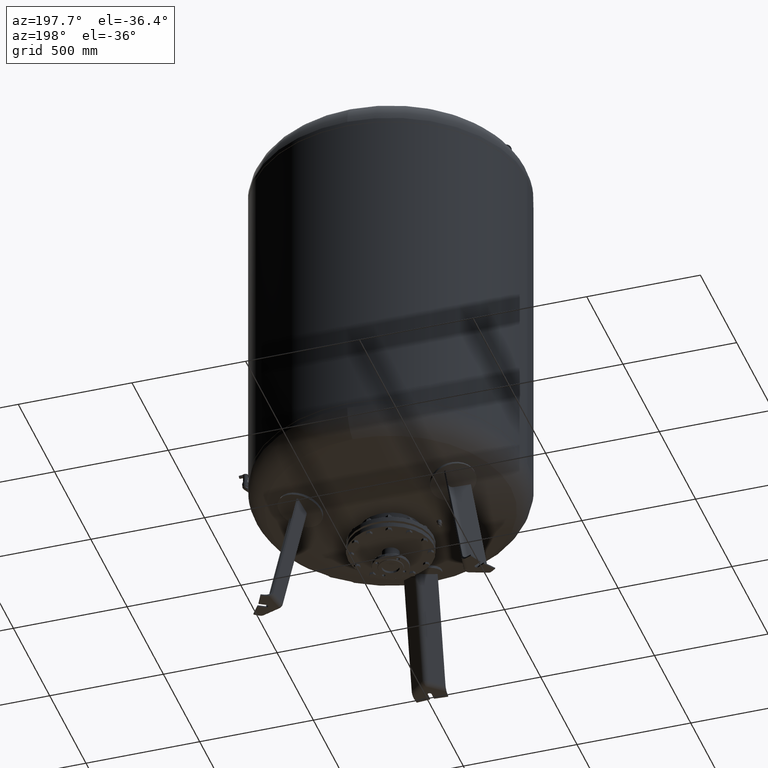
[diagram: clean part render]
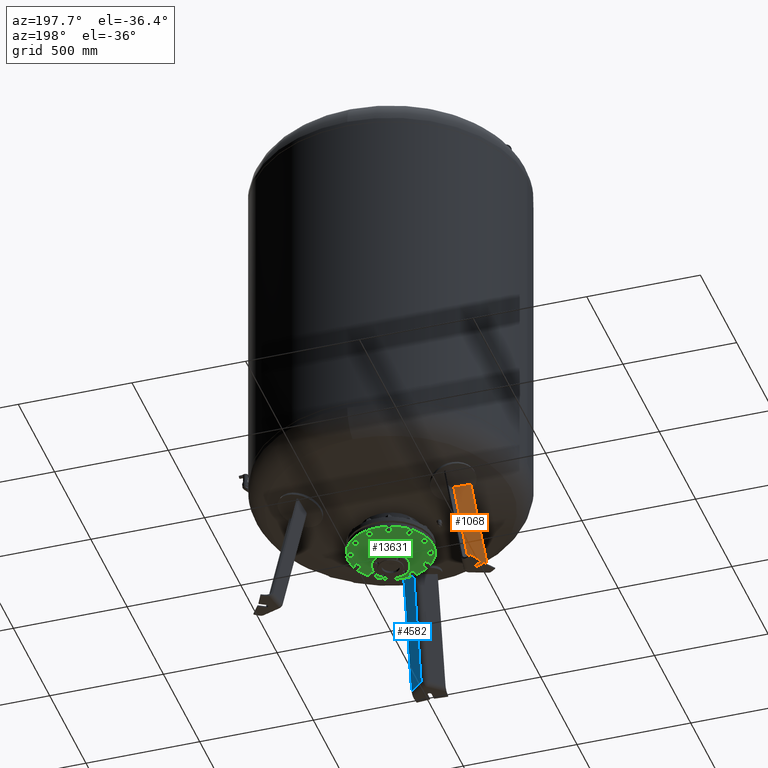
[diagram: same view with three faces highlighted in distinct colors, each labeled with its STEP entity id]
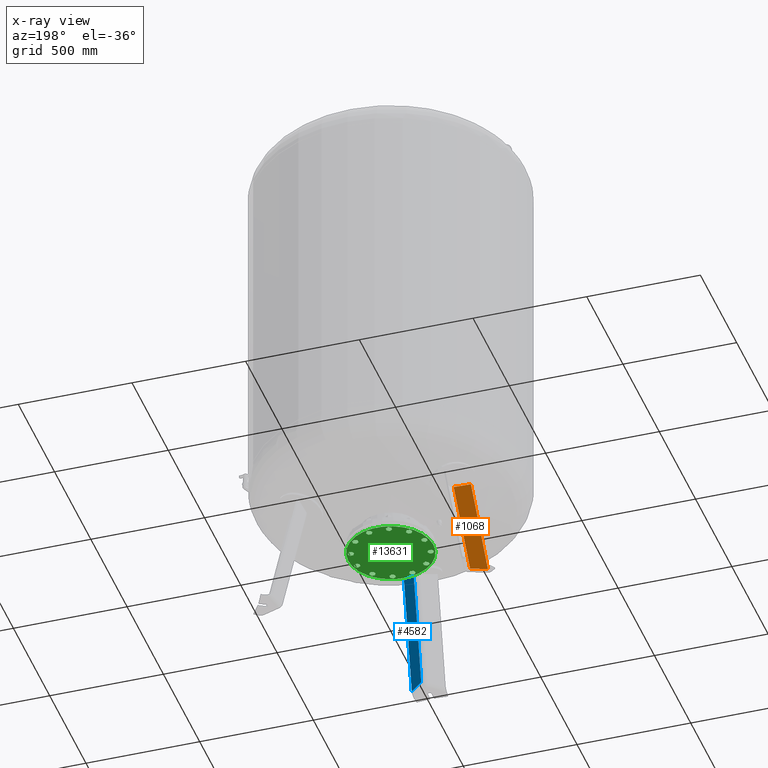
[diagram: x-ray of the same camera — body ghosted, the three highlighted faces saturated]
A machine part, auxiliary view with three faces highlighted in distinct colors.
The next image is the same camera in x-ray (body ghosted, the three faces saturated) — at least one of them is partly hidden behind the body in this view.
Their STEP definitions:

[orange] entity #1068 — the highlighted planar face has unit normal (-0.3243, 0.9325, 0.1588).
#512=CARTESIAN_POINT('',(-420.404321888330290,224.087779953756920,27.029948423057284));
#513=VERTEX_POINT('',#512);
#522=CARTESIAN_POINT('',(-491.178961512120280,199.476382368576220,27.029948423057281));
#523=VERTEX_POINT('',#522);
#531=CARTESIAN_POINT('',(-491.178961512120280,199.476382368576220,27.029948423057281));
#532=DIRECTION('',(0.944521094592692,0.328450760190052,4.741265E-017));
#533=VECTOR('',#532,74.931772333057651);
#534=LINE('',#531,#533);
#535=EDGE_CURVE('',#523,#513,#534,.T.);
#851=CARTESIAN_POINT('',(-331.808702377670270,172.937075180255650,508.320240019970470));
#852=VERTEX_POINT('',#851);
#882=CARTESIAN_POINT('',(-399.179928245355650,146.360715746824270,526.809077370483350));
#883=VERTEX_POINT('',#882);
#884=CARTESIAN_POINT('',(-77.536866522000253,96.546967477290963,1476.144501634031000));
#885=DIRECTION('',(0.324282864533177,-0.932535537409927,-0.158802063077709));
#886=DIRECTION('',(0.180056805991956,-0.103955845408880,0.978147600733805));
#887=AXIS2_PLACEMENT_3D('',#884,#885,#886);
#888=CIRCLE('',#887,1003.580298946269700);
#889=EDGE_CURVE('',#883,#852,#888,.T.);
#1043=CARTESIAN_POINT('',(-420.404321888330290,224.087779953756920,27.029948423057284));
#1044=DIRECTION('',(0.180056805991956,-0.103955845408880,0.978147600733806));
#1045=VECTOR('',#1044,492.042603013951630);
#1046=LINE('',#1043,#1045);
#1047=EDGE_CURVE('',#513,#852,#1046,.T.);
#1052=CARTESIAN_POINT('',(-500.117346623909440,204.636961418988250,-21.527282742766886));
#1053=DIRECTION('',(-0.324282864533177,0.932535537409927,0.158802063077709));
#1054=DIRECTION('',(0.180056805991956,-0.103955845408880,0.978147600733806));
#1055=AXIS2_PLACEMENT_3D('',#1052,#1053,#1054);
#1056=PLANE('',#1055);
#1057=ORIENTED_EDGE('',*,*,#889,.T.);
#1058=ORIENTED_EDGE('',*,*,#1047,.F.);
#1059=ORIENTED_EDGE('',*,*,#535,.F.);
#1060=CARTESIAN_POINT('',(-491.178961512120280,199.476382368576220,27.029948423057281));
#1061=DIRECTION('',(0.180056805991956,-0.103955845408880,0.978147600733806));
#1062=VECTOR('',#1061,510.944491989237750);
#1063=LINE('',#1060,#1062);
#1064=EDGE_CURVE('',#523,#883,#1063,.T.);
#1065=ORIENTED_EDGE('',*,*,#1064,.T.);
#1066=EDGE_LOOP('',(#1057,#1058,#1059,#1065));
#1067=FACE_OUTER_BOUND('',#1066,.T.);
#1068=ADVANCED_FACE('',(#1067),#1056,.T.);

[blue] entity #4582 — the highlighted planar face has unit normal (0.6455, 0.7471, -0.1588).
#3797=CARTESIAN_POINT('',(16.136450826554551,-469.470961811045530,21.029948423057281));
#3798=VERTEX_POINT('',#3797);
#3839=CARTESIAN_POINT('',(73.500000000000014,-519.029946471096990,21.029948423057284));
#3840=VERTEX_POINT('',#3839);
#3841=CARTESIAN_POINT('',(16.136450826554551,-469.470961811045530,21.029948423057281));
#3842=DIRECTION('',(0.756707249513243,-0.653753882232529,4.686537E-017));
#3843=VECTOR('',#3842,75.806792138366546);
#3844=LINE('',#3841,#3843);
#3845=EDGE_CURVE('',#3798,#3840,#3844,.T.);
#4331=CARTESIAN_POINT('',(16.136450826554654,-366.399566169852280,505.942739782580020));
#4332=VERTEX_POINT('',#4331);
#4333=CARTESIAN_POINT('',(73.500000000000114,-412.056023191574810,524.302688812935000));
#4334=VERTEX_POINT('',#4333);
#4335=CARTESIAN_POINT('',(-41.020088505273414,-110.996632672373320,1475.203780025492300));
#4336=DIRECTION('',(-0.645458033062182,-0.747104967402682,0.158802063077709));
#4337=DIRECTION('',(-5.092368E-017,-0.207911690817760,-0.978147600733805));
#4338=AXIS2_PLACEMENT_3D('',#4335,#4336,#4337);
#4339=CIRCLE('',#4338,1003.974348556914600);
#4340=EDGE_CURVE('',#4332,#4334,#4339,.T.);
#4554=CARTESIAN_POINT('',(16.136450826554654,-366.399566169852280,505.942739782580020));
#4555=DIRECTION('',(-2.078256E-016,-0.207911690817760,-0.978147600733806));
#4556=VECTOR('',#4555,495.746031576156330);
#4557=LINE('',#4554,#4556);
#4558=EDGE_CURVE('',#4332,#3798,#4557,.T.);
#4566=CARTESIAN_POINT('',(1.724896E-014,-464.575765201900940,-21.527282742766886));
#4567=DIRECTION('',(0.645458033062182,0.747104967402682,-0.158802063077709));
#4568=DIRECTION('',(-1.655020E-016,-0.207911690817760,-0.978147600733806));
#4569=AXIS2_PLACEMENT_3D('',#4566,#4567,#4568);
#4570=PLANE('',#4569);
#4571=ORIENTED_EDGE('',*,*,#4340,.T.);
#4572=CARTESIAN_POINT('',(73.500000000000014,-519.029946471096990,21.029948423057284));
#4573=DIRECTION('',(1.933389E-016,0.207911690817760,0.978147600733806));
#4574=VECTOR('',#4573,514.516152789541020);
#4575=LINE('',#4572,#4574);
#4576=EDGE_CURVE('',#3840,#4334,#4575,.T.);
#4577=ORIENTED_EDGE('',*,*,#4576,.F.);
#4578=ORIENTED_EDGE('',*,*,#3845,.F.);
#4579=ORIENTED_EDGE('',*,*,#4558,.F.);
#4580=EDGE_LOOP('',(#4571,#4577,#4578,#4579));
#4581=FACE_OUTER_BOUND('',#4580,.T.);
#4582=ADVANCED_FACE('',(#4581),#4570,.T.);

[green] entity #13631 — the highlighted planar face has unit normal (0, 0, -1).
#5775=CARTESIAN_POINT('',(-38.050000000000018,-4.163799E-015,362.0));
#5776=VERTEX_POINT('',#5775);
#5792=CARTESIAN_POINT('',(38.049999999999983,-8.823426E-015,362.0));
#5793=VERTEX_POINT('',#5792);
#5800=CARTESIAN_POINT('',(-8.604691E-015,-4.163799E-015,362.0));
#5801=DIRECTION('',(0.0,0.0,-1.0));
#5802=DIRECTION('',(-1.0,0.0,0.0));
#5803=AXIS2_PLACEMENT_3D('',#5800,#5801,#5802);
#5804=CIRCLE('',#5803,38.050000000000004);
#5805=EDGE_CURVE('',#5793,#5776,#5804,.T.);
#5815=CARTESIAN_POINT('',(-187.500000000000000,-4.163799E-015,362.000000000000110));
#5816=VERTEX_POINT('',#5815);
#5825=CARTESIAN_POINT('',(187.500000000000000,-2.712517E-014,362.000000000000110));
#5826=VERTEX_POINT('',#5825);
#5827=CARTESIAN_POINT('',(-8.604691E-015,-4.163799E-015,362.000000000000110));
#5828=DIRECTION('',(0.0,0.0,-1.0));
#5829=DIRECTION('',(-1.0,0.0,0.0));
#5830=AXIS2_PLACEMENT_3D('',#5827,#5828,#5829);
#5831=CIRCLE('',#5830,187.500000000000000);
#5832=EDGE_CURVE('',#5826,#5816,#5831,.T.);
#7831=CARTESIAN_POINT('',(43.352190054672320,-175.648982363969960,362.0));
#7832=VERTEX_POINT('',#7831);
#7833=CARTESIAN_POINT('',(55.352190054672313,-168.720779133694460,362.0));
#7834=VERTEX_POINT('',#7833);
#7835=CARTESIAN_POINT('',(43.352190054672320,-175.648982363969960,362.0));
#7836=DIRECTION('',(0.866025403784439,0.500000000000000,0.0));
#7837=VECTOR('',#7836,13.856406460551009);
#7838=LINE('',#7835,#7837);
#7839=EDGE_CURVE('',#7832,#7834,#7838,.T.);
#7871=CARTESIAN_POINT('',(31.352190054672334,-168.720779133694460,362.0));
#7872=VERTEX_POINT('',#7871);
#7873=CARTESIAN_POINT('',(31.352190054672334,-168.720779133694460,362.0));
#7874=DIRECTION('',(0.866025403784439,-0.500000000000000,0.0));
#7875=VECTOR('',#7874,13.856406460551002);
#7876=LINE('',#7873,#7875);
#7877=EDGE_CURVE('',#7872,#7832,#7876,.T.);
#7902=CARTESIAN_POINT('',(31.352190054672349,-154.864372673143440,362.0));
#7903=VERTEX_POINT('',#7902);
#7904=CARTESIAN_POINT('',(31.352190054672349,-154.864372673143440,362.0));
#7905=DIRECTION('',(0.0,-1.0,0.0));
#7906=VECTOR('',#7905,13.856406460551028);
#7907=LINE('',#7904,#7906);
#7908=EDGE_CURVE('',#7903,#7872,#7907,.T.);
#7933=CARTESIAN_POINT('',(43.352190054672320,-147.936169442867940,362.0));
#7934=VERTEX_POINT('',#7933);
#7935=CARTESIAN_POINT('',(43.352190054672320,-147.936169442867940,362.0));
#7936=DIRECTION('',(-0.866025403784438,-0.500000000000000,0.0));
#7937=VECTOR('',#7936,13.856406460550989);
#7938=LINE('',#7935,#7937);
#7939=EDGE_CURVE('',#7934,#7903,#7938,.T.);
#7964=CARTESIAN_POINT('',(55.352190054672313,-154.864372673143440,362.0));
#7965=VERTEX_POINT('',#7964);
#7966=CARTESIAN_POINT('',(55.352190054672313,-168.720779133694460,362.0));
#7967=DIRECTION('',(0.0,1.0,0.0));
#7968=VECTOR('',#7967,13.856406460551028);
#7969=LINE('',#7966,#7968);
#7970=EDGE_CURVE('',#7834,#7965,#7969,.T.);
#7995=CARTESIAN_POINT('',(55.352190054672313,-154.864372673143440,362.0));
#7996=DIRECTION('',(-0.866025403784439,0.500000000000000,0.0));
#7997=VECTOR('',#7996,13.856406460551009);
#7998=LINE('',#7995,#7997);
#7999=EDGE_CURVE('',#7965,#7934,#7998,.T.);
#8305=CARTESIAN_POINT('',(125.368589079022360,-130.440385848746640,362.0));
#8306=VERTEX_POINT('',#8305);
#8307=CARTESIAN_POINT('',(132.296792309297840,-118.440385848746640,362.0));
#8308=VERTEX_POINT('',#8307);
#8309=CARTESIAN_POINT('',(125.368589079022360,-130.440385848746640,362.0));
#8310=DIRECTION('',(0.499999999999999,0.866025403784439,0.0));
#8311=VECTOR('',#8310,13.856406460551007);
#8312=LINE('',#8309,#8311);
#8313=EDGE_CURVE('',#8306,#8308,#8312,.T.);
#8345=CARTESIAN_POINT('',(111.512182618471340,-130.440385848746640,362.0));
#8346=VERTEX_POINT('',#8345);
#8347=CARTESIAN_POINT('',(111.512182618471340,-130.440385848746640,362.0));
#8348=DIRECTION('',(1.0,0.0,0.0));
#8349=VECTOR('',#8348,13.856406460551014);
#8350=LINE('',#8347,#8349);
#8351=EDGE_CURVE('',#8346,#8306,#8350,.T.);
#8376=CARTESIAN_POINT('',(104.583979388195840,-118.440385848746660,362.0));
#8377=VERTEX_POINT('',#8376);
#8378=CARTESIAN_POINT('',(104.583979388195840,-118.440385848746660,362.0));
#8379=DIRECTION('',(0.500000000000000,-0.866025403784439,0.0));
#8380=VECTOR('',#8379,13.856406460551002);
#8381=LINE('',#8378,#8380);
#8382=EDGE_CURVE('',#8377,#8346,#8381,.T.);
#8407=CARTESIAN_POINT('',(111.512182618471340,-106.440385848746640,362.0));
#8408=VERTEX_POINT('',#8407);
#8409=CARTESIAN_POINT('',(111.512182618471340,-106.440385848746640,362.0));
#8410=DIRECTION('',(-0.499999999999999,-0.866025403784439,0.0));
#8411=VECTOR('',#8410,13.856406460551026);
#8412=LINE('',#8409,#8411);
#8413=EDGE_CURVE('',#8408,#8377,#8412,.T.);
#8438=CARTESIAN_POINT('',(125.368589079022340,-106.440385848746640,362.0));
#8439=VERTEX_POINT('',#8438);
#8440=CARTESIAN_POINT('',(132.296792309297840,-118.440385848746640,362.0));
#8441=DIRECTION('',(-0.500000000000000,0.866025403784439,0.0));
#8442=VECTOR('',#8441,13.856406460551014);
#8443=LINE('',#8440,#8442);
#8444=EDGE_CURVE('',#8308,#8439,#8443,.T.);
#8469=CARTESIAN_POINT('',(125.368589079022340,-106.440385848746640,362.0));
#8470=DIRECTION('',(-1.0,0.0,0.0));
#8471=VECTOR('',#8470,13.856406460551000);
#8472=LINE('',#8469,#8471);
#8473=EDGE_CURVE('',#8439,#8408,#8472,.T.);
#8779=CARTESIAN_POINT('',(173.792575903418990,-50.280393284947714,362.0));
#8780=VERTEX_POINT('',#8779);
#8781=CARTESIAN_POINT('',(173.792575903418990,-36.423986824396700,362.0));
#8782=VERTEX_POINT('',#8781);
#8783=CARTESIAN_POINT('',(173.792575903418990,-50.280393284947714,362.0));
#8784=DIRECTION('',(0.0,1.0,0.0));
#8785=VECTOR('',#8784,13.856406460551014);
#8786=LINE('',#8783,#8785);
#8787=EDGE_CURVE('',#8780,#8782,#8786,.T.);
#8819=CARTESIAN_POINT('',(161.792575903418990,-57.208596515223185,362.0));
#8820=VERTEX_POINT('',#8819);
#8821=CARTESIAN_POINT('',(161.792575903418990,-57.208596515223185,362.0));
#8822=DIRECTION('',(0.866025403784440,0.499999999999998,0.0));
#8823=VECTOR('',#8822,13.856406460551000);
#8824=LINE('',#8821,#8823);
#8825=EDGE_CURVE('',#8820,#8780,#8824,.T.);
#8850=CARTESIAN_POINT('',(149.792575903418990,-50.280393284947706,362.0));
#8851=VERTEX_POINT('',#8850);
#8852=CARTESIAN_POINT('',(149.792575903418990,-50.280393284947706,362.0));
#8853=DIRECTION('',(0.866025403784440,-0.499999999999998,0.0));
#8854=VECTOR('',#8853,13.856406460551003);
#8855=LINE('',#8852,#8854);
#8856=EDGE_CURVE('',#8851,#8820,#8855,.T.);
#8881=CARTESIAN_POINT('',(149.792575903419020,-36.423986824396692,362.0));
#8882=VERTEX_POINT('',#8881);
#8883=CARTESIAN_POINT('',(149.792575903419020,-36.423986824396692,362.0));
#8884=DIRECTION('',(0.0,-1.0,0.0));
#8885=VECTOR('',#8884,13.856406460551014);
#8886=LINE('',#8883,#8885);
#8887=EDGE_CURVE('',#8882,#8851,#8886,.T.);
#8912=CARTESIAN_POINT('',(161.792575903418990,-29.495783594121182,362.0));
#8913=VERTEX_POINT('',#8912);
#8914=CARTESIAN_POINT('',(173.792575903418990,-36.423986824396700,362.0));
#8915=DIRECTION('',(-0.866025403784438,0.500000000000000,0.0));
#8916=VECTOR('',#8915,13.856406460551023);
#8917=LINE('',#8914,#8916);
#8918=EDGE_CURVE('',#8782,#8913,#8917,.T.);
#8943=CARTESIAN_POINT('',(161.792575903418990,-29.495783594121182,362.0));
#8944=DIRECTION('',(-0.866025403784438,-0.500000000000001,0.0));
#8945=VECTOR('',#8944,13.856406460550994);
#8946=LINE('',#8943,#8945);
#8947=EDGE_CURVE('',#8913,#8882,#8946,.T.);
#9253=CARTESIAN_POINT('',(175.648982363969960,43.352190054672327,362.0));
#9254=VERTEX_POINT('',#9253);
#9255=CARTESIAN_POINT('',(168.720779133694460,55.352190054672320,362.0));
#9256=VERTEX_POINT('',#9255);
#9257=CARTESIAN_POINT('',(175.648982363969960,43.352190054672327,362.0));
#9258=DIRECTION('',(-0.500000000000000,0.866025403784439,0.0));
#9259=VECTOR('',#9258,13.856406460551009);
#9260=LINE('',#9257,#9259);
#9261=EDGE_CURVE('',#9254,#9256,#9260,.T.);
#9293=CARTESIAN_POINT('',(168.720779133694460,31.352190054672338,362.0));
#9294=VERTEX_POINT('',#9293);
#9295=CARTESIAN_POINT('',(168.720779133694460,31.352190054672338,362.0));
#9296=DIRECTION('',(0.500000000000000,0.866025403784439,0.0));
#9297=VECTOR('',#9296,13.856406460551003);
#9298=LINE('',#9295,#9297);
#9299=EDGE_CURVE('',#9294,#9254,#9298,.T.);
#9324=CARTESIAN_POINT('',(154.864372673143440,31.352190054672352,362.0));
#9325=VERTEX_POINT('',#9324);
#9326=CARTESIAN_POINT('',(154.864372673143440,31.352190054672352,362.0));
#9327=DIRECTION('',(1.0,0.0,0.0));
#9328=VECTOR('',#9327,13.856406460551028);
#9329=LINE('',#9326,#9328);
#9330=EDGE_CURVE('',#9325,#9294,#9329,.T.);
#9355=CARTESIAN_POINT('',(147.936169442867940,43.352190054672327,362.0));
#9356=VERTEX_POINT('',#9355);
#9357=CARTESIAN_POINT('',(147.936169442867940,43.352190054672327,362.0));
#9358=DIRECTION('',(0.500000000000000,-0.866025403784439,0.0));
#9359=VECTOR('',#9358,13.856406460550991);
#9360=LINE('',#9357,#9359);
#9361=EDGE_CURVE('',#9356,#9325,#9360,.T.);
#9386=CARTESIAN_POINT('',(154.864372673143440,55.352190054672320,362.0));
#9387=VERTEX_POINT('',#9386);
#9388=CARTESIAN_POINT('',(168.720779133694460,55.352190054672320,362.0));
#9389=DIRECTION('',(-1.0,0.0,0.0));
#9390=VECTOR('',#9389,13.856406460551028);
#9391=LINE('',#9388,#9390);
#9392=EDGE_CURVE('',#9256,#9387,#9391,.T.);
#9417=CARTESIAN_POINT('',(154.864372673143440,55.352190054672320,362.0));
#9418=DIRECTION('',(-0.500000000000000,-0.866025403784439,0.0));
#9419=VECTOR('',#9418,13.856406460551009);
#9420=LINE('',#9417,#9419);
#9421=EDGE_CURVE('',#9387,#9356,#9420,.T.);
#9727=CARTESIAN_POINT('',(130.440385848746670,125.368589079022270,362.0));
#9728=VERTEX_POINT('',#9727);
#9729=CARTESIAN_POINT('',(118.440385848746690,132.296792309297790,362.0));
#9730=VERTEX_POINT('',#9729);
#9731=CARTESIAN_POINT('',(130.440385848746670,125.368589079022270,362.0));
#9732=DIRECTION('',(-0.866025403784438,0.500000000000001,0.0));
#9733=VECTOR('',#9732,13.856406460551009);
#9734=LINE('',#9731,#9733);
#9735=EDGE_CURVE('',#9728,#9730,#9734,.T.);
#9767=CARTESIAN_POINT('',(130.440385848746670,111.512182618471270,362.0));
#9768=VERTEX_POINT('',#9767);
#9769=CARTESIAN_POINT('',(130.440385848746670,111.512182618471270,362.0));
#9770=DIRECTION('',(0.0,1.0,0.0));
#9771=VECTOR('',#9770,13.856406460551000);
#9772=LINE('',#9769,#9771);
#9773=EDGE_CURVE('',#9768,#9728,#9772,.T.);
#9798=CARTESIAN_POINT('',(118.440385848746700,104.583979388195790,362.0));
#9799=VERTEX_POINT('',#9798);
#9800=CARTESIAN_POINT('',(118.440385848746700,104.583979388195790,362.0));
#9801=DIRECTION('',(0.866025403784439,0.500000000000000,0.0));
#9802=VECTOR('',#9801,13.856406460550982);
#9803=LINE('',#9800,#9802);
#9804=EDGE_CURVE('',#9799,#9768,#9803,.T.);
#9829=CARTESIAN_POINT('',(106.440385848746700,111.512182618471290,362.0));
#9830=VERTEX_POINT('',#9829);
#9831=CARTESIAN_POINT('',(106.440385848746700,111.512182618471290,362.0));
#9832=DIRECTION('',(0.866025403784439,-0.500000000000000,0.0));
#9833=VECTOR('',#9832,13.856406460551014);
#9834=LINE('',#9831,#9833);
#9835=EDGE_CURVE('',#9830,#9799,#9834,.T.);
#9860=CARTESIAN_POINT('',(106.440385848746700,125.368589079022270,362.0));
#9861=VERTEX_POINT('',#9860);
#9862=CARTESIAN_POINT('',(118.440385848746690,132.296792309297790,362.0));
#9863=DIRECTION('',(-0.866025403784438,-0.500000000000001,0.0));
#9864=VECTOR('',#9863,13.856406460551009);
#9865=LINE('',#9862,#9864);
#9866=EDGE_CURVE('',#9730,#9861,#9865,.T.);
#9891=CARTESIAN_POINT('',(106.440385848746700,125.368589079022270,362.0));
#9892=DIRECTION('',(0.0,-1.0,0.0));
#9893=VECTOR('',#9892,13.856406460550986);
#9894=LINE('',#9891,#9893);
#9895=EDGE_CURVE('',#9861,#9830,#9894,.T.);
#10201=CARTESIAN_POINT('',(50.280393284947706,173.792575903418990,362.0));
#10202=VERTEX_POINT('',#10201);
#10203=CARTESIAN_POINT('',(36.423986824396678,173.792575903418940,362.0));
#10204=VERTEX_POINT('',#10203);
#10205=CARTESIAN_POINT('',(50.280393284947706,173.792575903418990,362.0));
#10206=DIRECTION('',(-1.0,0.0,0.0));
#10207=VECTOR('',#10206,13.856406460551028);
#10208=LINE('',#10205,#10207);
#10209=EDGE_CURVE('',#10202,#10204,#10208,.T.);
#10241=CARTESIAN_POINT('',(57.208596515223178,161.792575903418990,362.0));
#10242=VERTEX_POINT('',#10241);
#10243=CARTESIAN_POINT('',(57.208596515223178,161.792575903418990,362.0));
#10244=DIRECTION('',(-0.499999999999998,0.866025403784440,0.0));
#10245=VECTOR('',#10244,13.856406460551000);
#10246=LINE('',#10243,#10245);
#10247=EDGE_CURVE('',#10242,#10202,#10246,.T.);
#10272=CARTESIAN_POINT('',(50.280393284947692,149.792575903418990,362.0));
#10273=VERTEX_POINT('',#10272);
#10274=CARTESIAN_POINT('',(50.280393284947692,149.792575903418990,362.0));
#10275=DIRECTION('',(0.499999999999999,0.866025403784439,0.0));
#10276=VECTOR('',#10275,13.856406460551007);
#10277=LINE('',#10274,#10276);
#10278=EDGE_CURVE('',#10273,#10242,#10277,.T.);
#10303=CARTESIAN_POINT('',(36.423986824396678,149.792575903418990,362.0));
#10304=VERTEX_POINT('',#10303);
#10305=CARTESIAN_POINT('',(36.423986824396678,149.792575903418990,362.0));
#10306=DIRECTION('',(1.0,0.0,0.0));
#10307=VECTOR('',#10306,13.856406460551014);
#10308=LINE('',#10305,#10307);
#10309=EDGE_CURVE('',#10304,#10273,#10308,.T.);
#10334=CARTESIAN_POINT('',(29.495783594121185,161.792575903418990,362.0));
#10335=VERTEX_POINT('',#10334);
#10336=CARTESIAN_POINT('',(36.423986824396678,173.792575903418940,362.0));
#10337=DIRECTION('',(-0.500000000000001,-0.866025403784438,0.0));
#10338=VECTOR('',#10337,13.856406460550961);
#10339=LINE('',#10336,#10338);
#10340=EDGE_CURVE('',#10204,#10335,#10339,.T.);
#10365=CARTESIAN_POINT('',(29.495783594121185,161.792575903418990,362.0));
#10366=DIRECTION('',(0.499999999999999,-0.866025403784439,0.0));
#10367=VECTOR('',#10366,13.856406460551010);
#10368=LINE('',#10365,#10367);
#10369=EDGE_CURVE('',#10335,#10304,#10368,.T.);
#10675=CARTESIAN_POINT('',(-43.352190054672327,175.648982363969990,362.0));
#10676=VERTEX_POINT('',#10675);
#10677=CARTESIAN_POINT('',(-55.352190054672306,168.720779133694460,362.0));
#10678=VERTEX_POINT('',#10677);
#10679=CARTESIAN_POINT('',(-43.352190054672327,175.648982363969990,362.0));
#10680=DIRECTION('',(-0.866025403784438,-0.500000000000002,0.0));
#10681=VECTOR('',#10680,13.856406460551009);
#10682=LINE('',#10679,#10681);
#10683=EDGE_CURVE('',#10676,#10678,#10682,.T.);
#10715=CARTESIAN_POINT('',(-31.352190054672313,168.720779133694490,362.0));
#10716=VERTEX_POINT('',#10715);
#10717=CARTESIAN_POINT('',(-31.352190054672313,168.720779133694490,362.0));
#10718=DIRECTION('',(-0.866025403784439,0.499999999999999,0.0));
#10719=VECTOR('',#10718,13.856406460551026);
#10720=LINE('',#10717,#10719);
#10721=EDGE_CURVE('',#10716,#10676,#10720,.T.);
#10746=CARTESIAN_POINT('',(-31.352190054672327,154.864372673143460,362.0));
#10747=VERTEX_POINT('',#10746);
#10748=CARTESIAN_POINT('',(-31.352190054672327,154.864372673143460,362.0));
#10749=DIRECTION('',(0.0,1.0,0.0));
#10750=VECTOR('',#10749,13.856406460551028);
#10751=LINE('',#10748,#10750);
#10752=EDGE_CURVE('',#10747,#10716,#10751,.T.);
#10777=CARTESIAN_POINT('',(-43.352190054672334,147.936169442867940,362.0));
#10778=VERTEX_POINT('',#10777);
#10779=CARTESIAN_POINT('',(-43.352190054672334,147.936169442867940,362.0));
#10780=DIRECTION('',(0.866025403784438,0.500000000000001,0.0));
#10781=VECTOR('',#10780,13.856406460551034);
#10782=LINE('',#10779,#10781);
#10783=EDGE_CURVE('',#10778,#10747,#10782,.T.);
#10808=CARTESIAN_POINT('',(-55.352190054672306,154.864372673143460,362.0));
#10809=VERTEX_POINT('',#10808);
#10810=CARTESIAN_POINT('',(-55.352190054672306,168.720779133694460,362.0));
#10811=DIRECTION('',(0.0,-1.0,0.0));
#10812=VECTOR('',#10811,13.856406460551000);
#10813=LINE('',#10810,#10812);
#10814=EDGE_CURVE('',#10678,#10809,#10813,.T.);
#10839=CARTESIAN_POINT('',(-55.352190054672306,154.864372673143460,362.0));
#10840=DIRECTION('',(0.866025403784437,-0.500000000000002,0.0));
#10841=VECTOR('',#10840,13.856406460551003);
#10842=LINE('',#10839,#10841);
#10843=EDGE_CURVE('',#10809,#10778,#10842,.T.);
#11149=CARTESIAN_POINT('',(-125.368589079022270,130.440385848746700,362.0));
#11150=VERTEX_POINT('',#11149);
#11151=CARTESIAN_POINT('',(-132.296792309297790,118.440385848746690,362.0));
#11152=VERTEX_POINT('',#11151);
#11153=CARTESIAN_POINT('',(-125.368589079022270,130.440385848746700,362.0));
#11154=DIRECTION('',(-0.500000000000000,-0.866025403784439,0.0));
#11155=VECTOR('',#11154,13.856406460551034);
#11156=LINE('',#11153,#11155);
#11157=EDGE_CURVE('',#11150,#11152,#11156,.T.);
#11189=CARTESIAN_POINT('',(-111.512182618471270,130.440385848746670,362.0));
#11190=VERTEX_POINT('',#11189);
#11191=CARTESIAN_POINT('',(-111.512182618471270,130.440385848746670,362.0));
#11192=DIRECTION('',(-1.0,0.0,0.0));
#11193=VECTOR('',#11192,13.856406460551000);
#11194=LINE('',#11191,#11193);
#11195=EDGE_CURVE('',#11190,#11150,#11194,.T.);
#11220=CARTESIAN_POINT('',(-104.583979388195760,118.440385848746690,362.0));
#11221=VERTEX_POINT('',#11220);
#11222=CARTESIAN_POINT('',(-104.583979388195760,118.440385848746690,362.0));
#11223=DIRECTION('',(-0.500000000000001,0.866025403784438,0.0));
#11224=VECTOR('',#11223,13.856406460551009);
#11225=LINE('',#11222,#11224);
#11226=EDGE_CURVE('',#11221,#11190,#11225,.T.);
#11251=CARTESIAN_POINT('',(-111.512182618471270,106.440385848746700,362.0));
#11252=VERTEX_POINT('',#11251);
#11253=CARTESIAN_POINT('',(-111.512182618471270,106.440385848746700,362.0));
#11254=DIRECTION('',(0.500000000000001,0.866025403784438,0.0));
#11255=VECTOR('',#11254,13.856406460551009);
#11256=LINE('',#11253,#11255);
#11257=EDGE_CURVE('',#11252,#11221,#11256,.T.);
#11282=CARTESIAN_POINT('',(-125.368589079022270,106.440385848746700,362.0));
#11283=VERTEX_POINT('',#11282);
#11284=CARTESIAN_POINT('',(-132.296792309297790,118.440385848746690,362.0));
#11285=DIRECTION('',(0.500000000000001,-0.866025403784438,0.0));
#11286=VECTOR('',#11285,13.856406460551009);
#11287=LINE('',#11284,#11286);
#11288=EDGE_CURVE('',#11152,#11283,#11287,.T.);
#11313=CARTESIAN_POINT('',(-125.368589079022270,106.440385848746700,362.0));
#11314=DIRECTION('',(1.0,0.0,0.0));
#11315=VECTOR('',#11314,13.856406460551000);
#11316=LINE('',#11313,#11315);
#11317=EDGE_CURVE('',#11283,#11252,#11316,.T.);
#11623=CARTESIAN_POINT('',(-173.792575903418960,50.280393284947714,362.0));
#11624=VERTEX_POINT('',#11623);
#11625=CARTESIAN_POINT('',(-173.792575903418960,36.423986824396714,362.0));
#11626=VERTEX_POINT('',#11625);
#11627=CARTESIAN_POINT('',(-173.792575903418960,50.280393284947714,362.0));
#11628=DIRECTION('',(0.0,-1.0,0.0));
#11629=VECTOR('',#11628,13.856406460551000);
#11630=LINE('',#11627,#11629);
#11631=EDGE_CURVE('',#11624,#11626,#11630,.T.);
#11663=CARTESIAN_POINT('',(-161.792575903419020,57.208596515223206,362.0));
#11664=VERTEX_POINT('',#11663);
#11665=CARTESIAN_POINT('',(-161.792575903419020,57.208596515223206,362.0));
#11666=DIRECTION('',(-0.866025403784438,-0.500000000000001,0.0));
#11667=VECTOR('',#11666,13.856406460550961);
#11668=LINE('',#11665,#11667);
#11669=EDGE_CURVE('',#11664,#11624,#11668,.T.);
#11694=CARTESIAN_POINT('',(-149.792575903418990,50.280393284947714,362.0));
#11695=VERTEX_POINT('',#11694);
#11696=CARTESIAN_POINT('',(-149.792575903418990,50.280393284947714,362.0));
#11697=DIRECTION('',(-0.866025403784440,0.499999999999998,0.0));
#11698=VECTOR('',#11697,13.856406460551035);
#11699=LINE('',#11696,#11698);
#11700=EDGE_CURVE('',#11695,#11664,#11699,.T.);
#11725=CARTESIAN_POINT('',(-149.792575903418990,36.423986824396685,362.0));
#11726=VERTEX_POINT('',#11725);
#11727=CARTESIAN_POINT('',(-149.792575903418990,36.423986824396685,362.0));
#11728=DIRECTION('',(0.0,1.0,0.0));
#11729=VECTOR('',#11728,13.856406460551028);
#11730=LINE('',#11727,#11729);
#11731=EDGE_CURVE('',#11726,#11695,#11730,.T.);
#11756=CARTESIAN_POINT('',(-161.792575903418990,29.495783594121210,362.0));
#11757=VERTEX_POINT('',#11756);
#11758=CARTESIAN_POINT('',(-173.792575903418960,36.423986824396714,362.0));
#11759=DIRECTION('',(0.866025403784438,-0.500000000000001,0.0));
#11760=VECTOR('',#11759,13.856406460550991);
#11761=LINE('',#11758,#11760);
#11762=EDGE_CURVE('',#11626,#11757,#11761,.T.);
#11787=CARTESIAN_POINT('',(-161.792575903418990,29.495783594121210,362.0));
#11788=DIRECTION('',(0.866025403784440,0.499999999999998,0.0));
#11789=VECTOR('',#11788,13.856406460551002);
#11790=LINE('',#11787,#11789);
#11791=EDGE_CURVE('',#11757,#11726,#11790,.T.);
#12097=CARTESIAN_POINT('',(-175.648982363969990,-43.352190054672270,362.0));
#12098=VERTEX_POINT('',#12097);
#12099=CARTESIAN_POINT('',(-168.720779133694490,-55.352190054672263,362.0));
#12100=VERTEX_POINT('',#12099);
#12101=CARTESIAN_POINT('',(-175.648982363969990,-43.352190054672270,362.0));
#12102=DIRECTION('',(0.500000000000000,-0.866025403784439,0.0));
#12103=VECTOR('',#12102,13.856406460551009);
#12104=LINE('',#12101,#12103);
#12105=EDGE_CURVE('',#12098,#12100,#12104,.T.);
#12137=CARTESIAN_POINT('',(-168.720779133694490,-31.352190054672281,362.0));
#12138=VERTEX_POINT('',#12137);
#12139=CARTESIAN_POINT('',(-168.720779133694490,-31.352190054672281,362.0));
#12140=DIRECTION('',(-0.500000000000000,-0.866025403784439,0.0));
#12141=VECTOR('',#12140,13.856406460551003);
#12142=LINE('',#12139,#12141);
#12143=EDGE_CURVE('',#12138,#12098,#12142,.T.);
#12168=CARTESIAN_POINT('',(-154.864372673143460,-31.352190054672299,362.0));
#12169=VERTEX_POINT('',#12168);
#12170=CARTESIAN_POINT('',(-154.864372673143460,-31.352190054672299,362.0));
#12171=DIRECTION('',(-1.0,0.0,0.0));
#12172=VECTOR('',#12171,13.856406460551028);
#12173=LINE('',#12170,#12172);
#12174=EDGE_CURVE('',#12169,#12138,#12173,.T.);
#12199=CARTESIAN_POINT('',(-147.936169442867960,-43.352190054672299,362.0));
#12200=VERTEX_POINT('',#12199);
#12201=CARTESIAN_POINT('',(-147.936169442867960,-43.352190054672299,362.0));
#12202=DIRECTION('',(-0.500000000000000,0.866025403784439,0.0));
#12203=VECTOR('',#12202,13.856406460551014);
#12204=LINE('',#12201,#12203);
#12205=EDGE_CURVE('',#12200,#12169,#12204,.T.);
#12230=CARTESIAN_POINT('',(-154.864372673143460,-55.352190054672263,362.0));
#12231=VERTEX_POINT('',#12230);
#12232=CARTESIAN_POINT('',(-168.720779133694490,-55.352190054672263,362.0));
#12233=DIRECTION('',(1.0,0.0,0.0));
#12234=VECTOR('',#12233,13.856406460551028);
#12235=LINE('',#12232,#12234);
#12236=EDGE_CURVE('',#12100,#12231,#12235,.T.);
#12261=CARTESIAN_POINT('',(-154.864372673143460,-55.352190054672263,362.0));
#12262=DIRECTION('',(0.500000000000001,0.866025403784438,0.0));
#12263=VECTOR('',#12262,13.856406460550984);
#12264=LINE('',#12261,#12263);
#12265=EDGE_CURVE('',#12231,#12200,#12264,.T.);
#12571=CARTESIAN_POINT('',(-130.440385848746730,-125.368589079022260,362.0));
#12572=VERTEX_POINT('',#12571);
#12573=CARTESIAN_POINT('',(-118.440385848746730,-132.296792309297760,362.0));
#12574=VERTEX_POINT('',#12573);
#12575=CARTESIAN_POINT('',(-130.440385848746730,-125.368589079022260,362.0));
#12576=DIRECTION('',(0.866025403784439,-0.500000000000000,0.0));
#12577=VECTOR('',#12576,13.856406460551014);
#12578=LINE('',#12575,#12577);
#12579=EDGE_CURVE('',#12572,#12574,#12578,.T.);
#12611=CARTESIAN_POINT('',(-130.440385848746700,-111.512182618471260,362.0));
#12612=VERTEX_POINT('',#12611);
#12613=CARTESIAN_POINT('',(-130.440385848746700,-111.512182618471260,362.0));
#12614=DIRECTION('',(0.0,-1.0,0.0));
#12615=VECTOR('',#12614,13.856406460551000);
#12616=LINE('',#12613,#12615);
#12617=EDGE_CURVE('',#12612,#12572,#12616,.T.);
#12642=CARTESIAN_POINT('',(-118.440385848746700,-104.583979388195760,362.0));
#12643=VERTEX_POINT('',#12642);
#12644=CARTESIAN_POINT('',(-118.440385848746700,-104.583979388195760,362.0));
#12645=DIRECTION('',(-0.866025403784439,-0.500000000000000,0.0));
#12646=VECTOR('',#12645,13.856406460551014);
#12647=LINE('',#12644,#12646);
#12648=EDGE_CURVE('',#12643,#12612,#12647,.T.);
#12673=CARTESIAN_POINT('',(-106.440385848746710,-111.512182618471270,362.0));
#12674=VERTEX_POINT('',#12673);
#12675=CARTESIAN_POINT('',(-106.440385848746710,-111.512182618471270,362.0));
#12676=DIRECTION('',(-0.866025403784438,0.500000000000001,0.0));
#12677=VECTOR('',#12676,13.856406460551009);
#12678=LINE('',#12675,#12677);
#12679=EDGE_CURVE('',#12674,#12643,#12678,.T.);
#12704=CARTESIAN_POINT('',(-106.440385848746710,-125.368589079022260,362.0));
#12705=VERTEX_POINT('',#12704);
#12706=CARTESIAN_POINT('',(-118.440385848746730,-132.296792309297760,362.0));
#12707=DIRECTION('',(0.866025403784439,0.499999999999999,0.0));
#12708=VECTOR('',#12707,13.856406460551026);
#12709=LINE('',#12706,#12708);
#12710=EDGE_CURVE('',#12574,#12705,#12709,.T.);
#12735=CARTESIAN_POINT('',(-106.440385848746710,-125.368589079022260,362.0));
#12736=DIRECTION('',(0.0,1.0,0.0));
#12737=VECTOR('',#12736,13.856406460550986);
#12738=LINE('',#12735,#12737);
#12739=EDGE_CURVE('',#12705,#12674,#12738,.T.);
#13315=CARTESIAN_POINT('',(-50.280393284947756,-173.792575903418960,362.0));
#13316=VERTEX_POINT('',#13315);
#13317=CARTESIAN_POINT('',(-36.423986824396742,-173.792575903418960,362.0));
#13318=VERTEX_POINT('',#13317);
#13319=CARTESIAN_POINT('',(-50.280393284947756,-173.792575903418960,362.0));
#13320=DIRECTION('',(1.0,0.0,0.0));
#13321=VECTOR('',#13320,13.856406460551014);
#13322=LINE('',#13319,#13321);
#13323=EDGE_CURVE('',#13316,#13318,#13322,.T.);
#13355=CARTESIAN_POINT('',(-57.208596515223249,-161.792575903418990,362.0));
#13356=VERTEX_POINT('',#13355);
#13357=CARTESIAN_POINT('',(-57.208596515223249,-161.792575903418990,362.0));
#13358=DIRECTION('',(0.500000000000000,-0.866025403784439,0.0));
#13359=VECTOR('',#13358,13.856406460550986);
#13360=LINE('',#13357,#13359);
#13361=EDGE_CURVE('',#13356,#13316,#13360,.T.);
#13386=CARTESIAN_POINT('',(-50.280393284947735,-149.792575903418990,362.0));
#13387=VERTEX_POINT('',#13386);
#13388=CARTESIAN_POINT('',(-50.280393284947735,-149.792575903418990,362.0));
#13389=DIRECTION('',(-0.500000000000000,-0.866025403784438,0.0));
#13390=VECTOR('',#13389,13.856406460551021);
#13391=LINE('',#13388,#13390);
#13392=EDGE_CURVE('',#13387,#13356,#13391,.T.);
#13417=CARTESIAN_POINT('',(-36.423986824396721,-149.792575903418990,362.0));
#13418=VERTEX_POINT('',#13417);
#13419=CARTESIAN_POINT('',(-36.423986824396721,-149.792575903418990,362.0));
#13420=DIRECTION('',(-1.0,0.0,0.0));
#13421=VECTOR('',#13420,13.856406460551014);
#13422=LINE('',#13419,#13421);
#13423=EDGE_CURVE('',#13418,#13387,#13422,.T.);
#13448=CARTESIAN_POINT('',(-29.495783594121228,-161.792575903418990,362.0));
#13449=VERTEX_POINT('',#13448);
#13450=CARTESIAN_POINT('',(-36.423986824396742,-173.792575903418960,362.0));
#13451=DIRECTION('',(0.500000000000001,0.866025403784438,0.0));
#13452=VECTOR('',#13451,13.856406460550996);
#13453=LINE('',#13450,#13452);
#13454=EDGE_CURVE('',#13318,#13449,#13453,.T.);
#13479=CARTESIAN_POINT('',(-29.495783594121228,-161.792575903418990,362.0));
#13480=DIRECTION('',(-0.499999999999999,0.866025403784439,0.0));
#13481=VECTOR('',#13480,13.856406460551010);
#13482=LINE('',#13479,#13481);
#13483=EDGE_CURVE('',#13449,#13418,#13482,.T.);
#13510=CARTESIAN_POINT('',(-19.025000000000009,-4.163799E-015,362.0));
#13511=DIRECTION('',(0.0,0.0,-1.0));
#13512=DIRECTION('',(0.0,-1.0,0.0));
#13513=AXIS2_PLACEMENT_3D('',#13510,#13511,#13512);
#13514=PLANE('',#13513);
#13515=CARTESIAN_POINT('',(-8.604691E-015,-4.163799E-015,362.000000000000110));
#13516=DIRECTION('',(0.0,0.0,-1.0));
#13517=DIRECTION('',(-1.0,0.0,0.0));
#13518=AXIS2_PLACEMENT_3D('',#13515,#13516,#13517);
#13519=CIRCLE('',#13518,187.500000000000000);
#13520=EDGE_CURVE('',#5816,#5826,#13519,.T.);
#13521=ORIENTED_EDGE('',*,*,#13520,.T.);
#13522=ORIENTED_EDGE('',*,*,#5832,.T.);
#13523=EDGE_LOOP('',(#13521,#13522));
#13524=FACE_OUTER_BOUND('',#13523,.T.);
#13525=ORIENTED_EDGE('',*,*,#7839,.T.);
#13526=ORIENTED_EDGE('',*,*,#7970,.T.);
#13527=ORIENTED_EDGE('',*,*,#7999,.T.);
#13528=ORIENTED_EDGE('',*,*,#7939,.T.);
#13529=ORIENTED_EDGE('',*,*,#7908,.T.);
#13530=ORIENTED_EDGE('',*,*,#7877,.T.);
#13531=EDGE_LOOP('',(#13525,#13526,#13527,#13528,#13529,#13530));
#13532=FACE_BOUND('',#13531,.T.);
#13533=ORIENTED_EDGE('',*,*,#8313,.T.);
#13534=ORIENTED_EDGE('',*,*,#8444,.T.);
#13535=ORIENTED_EDGE('',*,*,#8473,.T.);
#13536=ORIENTED_EDGE('',*,*,#8413,.T.);
#13537=ORIENTED_EDGE('',*,*,#8382,.T.);
#13538=ORIENTED_EDGE('',*,*,#8351,.T.);
#13539=EDGE_LOOP('',(#13533,#13534,#13535,#13536,#13537,#13538));
#13540=FACE_BOUND('',#13539,.T.);
#13541=ORIENTED_EDGE('',*,*,#8787,.T.);
#13542=ORIENTED_EDGE('',*,*,#8918,.T.);
#13543=ORIENTED_EDGE('',*,*,#8947,.T.);
#13544=ORIENTED_EDGE('',*,*,#8887,.T.);
#13545=ORIENTED_EDGE('',*,*,#8856,.T.);
#13546=ORIENTED_EDGE('',*,*,#8825,.T.);
#13547=EDGE_LOOP('',(#13541,#13542,#13543,#13544,#13545,#13546));
#13548=FACE_BOUND('',#13547,.T.);
#13549=ORIENTED_EDGE('',*,*,#9261,.T.);
#13550=ORIENTED_EDGE('',*,*,#9392,.T.);
#13551=ORIENTED_EDGE('',*,*,#9421,.T.);
#13552=ORIENTED_EDGE('',*,*,#9361,.T.);
#13553=ORIENTED_EDGE('',*,*,#9330,.T.);
#13554=ORIENTED_EDGE('',*,*,#9299,.T.);
#13555=EDGE_LOOP('',(#13549,#13550,#13551,#13552,#13553,#13554));
#13556=FACE_BOUND('',#13555,.T.);
#13557=ORIENTED_EDGE('',*,*,#9735,.T.);
#13558=ORIENTED_EDGE('',*,*,#9866,.T.);
#13559=ORIENTED_EDGE('',*,*,#9895,.T.);
#13560=ORIENTED_EDGE('',*,*,#9835,.T.);
#13561=ORIENTED_EDGE('',*,*,#9804,.T.);
#13562=ORIENTED_EDGE('',*,*,#9773,.T.);
#13563=EDGE_LOOP('',(#13557,#13558,#13559,#13560,#13561,#13562));
#13564=FACE_BOUND('',#13563,.T.);
#13565=ORIENTED_EDGE('',*,*,#10209,.T.);
#13566=ORIENTED_EDGE('',*,*,#10340,.T.);
#13567=ORIENTED_EDGE('',*,*,#10369,.T.);
#13568=ORIENTED_EDGE('',*,*,#10309,.T.);
#13569=ORIENTED_EDGE('',*,*,#10278,.T.);
#13570=ORIENTED_EDGE('',*,*,#10247,.T.);
#13571=EDGE_LOOP('',(#13565,#13566,#13567,#13568,#13569,#13570));
#13572=FACE_BOUND('',#13571,.T.);
#13573=ORIENTED_EDGE('',*,*,#10683,.T.);
#13574=ORIENTED_EDGE('',*,*,#10814,.T.);
#13575=ORIENTED_EDGE('',*,*,#10843,.T.);
#13576=ORIENTED_EDGE('',*,*,#10783,.T.);
#13577=ORIENTED_EDGE('',*,*,#10752,.T.);
#13578=ORIENTED_EDGE('',*,*,#10721,.T.);
#13579=EDGE_LOOP('',(#13573,#13574,#13575,#13576,#13577,#13578));
#13580=FACE_BOUND('',#13579,.T.);
#13581=ORIENTED_EDGE('',*,*,#11157,.T.);
#13582=ORIENTED_EDGE('',*,*,#11288,.T.);
#13583=ORIENTED_EDGE('',*,*,#11317,.T.);
#13584=ORIENTED_EDGE('',*,*,#11257,.T.);
#13585=ORIENTED_EDGE('',*,*,#11226,.T.);
#13586=ORIENTED_EDGE('',*,*,#11195,.T.);
#13587=EDGE_LOOP('',(#13581,#13582,#13583,#13584,#13585,#13586));
#13588=FACE_BOUND('',#13587,.T.);
#13589=ORIENTED_EDGE('',*,*,#11631,.T.);
#13590=ORIENTED_EDGE('',*,*,#11762,.T.);
#13591=ORIENTED_EDGE('',*,*,#11791,.T.);
#13592=ORIENTED_EDGE('',*,*,#11731,.T.);
#13593=ORIENTED_EDGE('',*,*,#11700,.T.);
#13594=ORIENTED_EDGE('',*,*,#11669,.T.);
#13595=EDGE_LOOP('',(#13589,#13590,#13591,#13592,#13593,#13594));
#13596=FACE_BOUND('',#13595,.T.);
#13597=ORIENTED_EDGE('',*,*,#12105,.T.);
#13598=ORIENTED_EDGE('',*,*,#12236,.T.);
#13599=ORIENTED_EDGE('',*,*,#12265,.T.);
#13600=ORIENTED_EDGE('',*,*,#12205,.T.);
#13601=ORIENTED_EDGE('',*,*,#12174,.T.);
#13602=ORIENTED_EDGE('',*,*,#12143,.T.);
#13603=EDGE_LOOP('',(#13597,#13598,#13599,#13600,#13601,#13602));
#13604=FACE_BOUND('',#13603,.T.);
#13605=ORIENTED_EDGE('',*,*,#12579,.T.);
#13606=ORIENTED_EDGE('',*,*,#12710,.T.);
#13607=ORIENTED_EDGE('',*,*,#12739,.T.);
#13608=ORIENTED_EDGE('',*,*,#12679,.T.);
#13609=ORIENTED_EDGE('',*,*,#12648,.T.);
#13610=ORIENTED_EDGE('',*,*,#12617,.T.);
#13611=EDGE_LOOP('',(#13605,#13606,#13607,#13608,#13609,#13610));
#13612=FACE_BOUND('',#13611,.T.);
#13613=ORIENTED_EDGE('',*,*,#13323,.T.);
#13614=ORIENTED_EDGE('',*,*,#13454,.T.);
#13615=ORIENTED_EDGE('',*,*,#13483,.T.);
#13616=ORIENTED_EDGE('',*,*,#13423,.T.);
#13617=ORIENTED_EDGE('',*,*,#13392,.T.);
#13618=ORIENTED_EDGE('',*,*,#13361,.T.);
#13619=EDGE_LOOP('',(#13613,#13614,#13615,#13616,#13617,#13618));
#13620=FACE_BOUND('',#13619,.T.);
#13621=CARTESIAN_POINT('',(-8.604691E-015,-4.163799E-015,362.0));
#13622=DIRECTION('',(0.0,0.0,-1.0));
#13623=DIRECTION('',(-1.0,0.0,0.0));
#13624=AXIS2_PLACEMENT_3D('',#13621,#13622,#13623);
#13625=CIRCLE('',#13624,38.050000000000004);
#13626=EDGE_CURVE('',#5776,#5793,#13625,.T.);
#13627=ORIENTED_EDGE('',*,*,#13626,.F.);
#13628=ORIENTED_EDGE('',*,*,#5805,.F.);
#13629=EDGE_LOOP('',(#13627,#13628));
#13630=FACE_BOUND('',#13629,.T.);
#13631=ADVANCED_FACE('',(#13524,#13532,#13540,#13548,#13556,#13564,#13572,#13580,#13588,#13596,#13604,#13612,#13620,#13630),#13514,.T.);